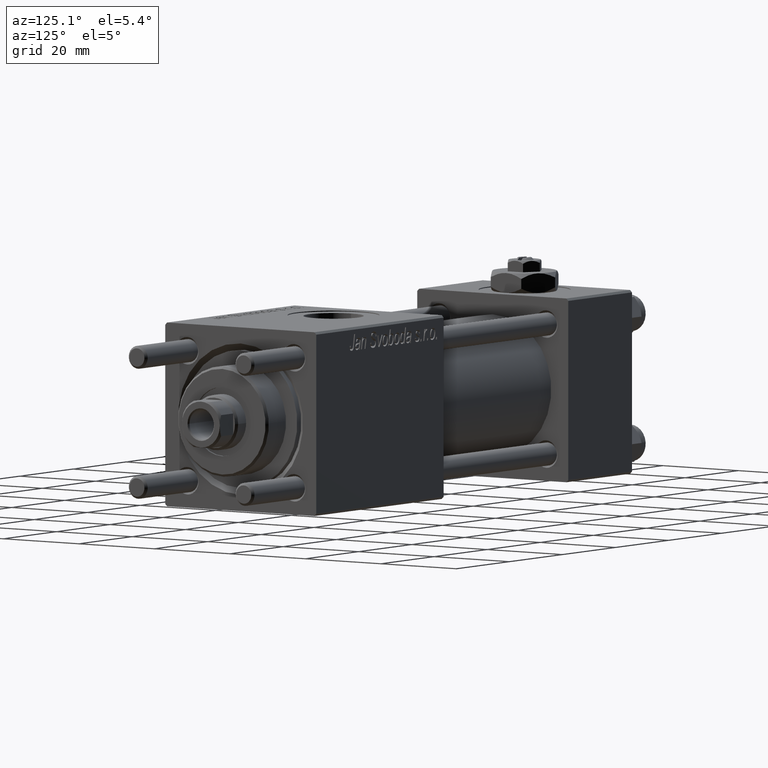
[diagram: clean part render]
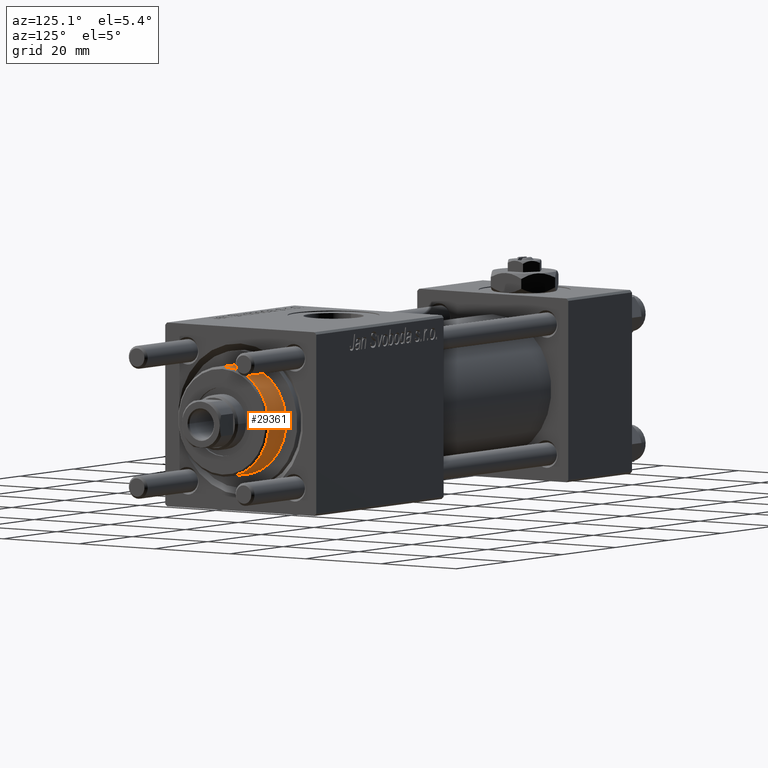
[diagram: same view with one face highlighted and labeled with its STEP entity id]
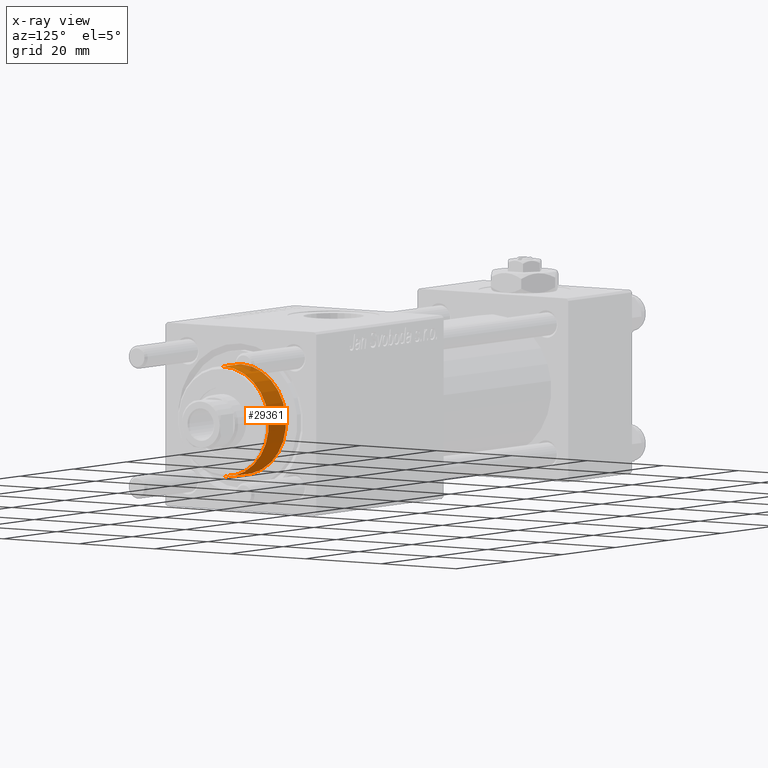
[diagram: x-ray of the same camera — body ghosted, the highlighted face saturated]
A machine part, auxiliary view. The second image highlights one B-rep face of the part: STEP entity #29361.
The next image is the same camera in x-ray: the body ghosted, the highlighted face saturated — about 4% of this face is hidden behind the body in this view.
In plain terms, the highlighted cylindrical surface (partial cylindrical patch) has radius 12 mm, axis along (-1, -0, 0).
Its self-contained STEP definition (entity closure, byte-faithful):
#186 = CARTESIAN_POINT ( 'NONE',  ( -12.00000000000000178, 0.000000000000000000, 35.70000000000000284 ) ) ;
#649 = AXIS2_PLACEMENT_3D ( 'NONE', #35007, #48288, #29972 ) ;
#1115 = AXIS2_PLACEMENT_3D ( 'NONE', #11661, #29681, #7503 ) ;
#2520 = VECTOR ( 'NONE', #42099, 1000.000000000000000 ) ;
#3050 = EDGE_CURVE ( 'NONE', #33622, #57617, #40954, .T. ) ;
#4201 = EDGE_CURVE ( 'NONE', #57617, #55994, #18612, .T. ) ;
#7251 = CARTESIAN_POINT ( 'NONE',  ( -12.00000000000000178, 0.000000000000000000, 28.69999999999999929 ) ) ;
#7503 = DIRECTION ( 'NONE',  ( 1.000000000000000000, 0.000000000000000000, 0.000000000000000000 ) ) ;
#11661 = CARTESIAN_POINT ( 'NONE',  ( 0.000000000000000000, 0.000000000000000000, 35.19999999999999574 ) ) ;
#12492 = CIRCLE ( 'NONE', #1115, 12.00000000000000178 ) ;
#13348 = CYLINDRICAL_SURFACE ( 'NONE', #57452, 12.00000000000000178 ) ;
#18612 = CIRCLE ( 'NONE', #649, 12.00000000000000178 ) ;
#19070 = CARTESIAN_POINT ( 'NONE',  ( 12.00000000000000178, 1.469576158976824144E-15, 35.70000000000000284 ) ) ;
#22963 = ORIENTED_EDGE ( 'NONE', *, *, #30290, .F. ) ;
#25221 = VERTEX_POINT ( 'NONE', #29364 ) ;
#25448 = DIRECTION ( 'NONE',  ( -0.000000000000000000, -0.000000000000000000, -1.000000000000000000 ) ) ;
#29361 = ADVANCED_FACE ( 'NONE', ( #34626 ), #13348, .T. ) ;
#29364 = CARTESIAN_POINT ( 'NONE',  ( -12.00000000000000178, 0.000000000000000000, 35.19999999999999574 ) ) ;
#29681 = DIRECTION ( 'NONE',  ( 0.000000000000000000, 0.000000000000000000, -1.000000000000000000 ) ) ;
#29972 = DIRECTION ( 'NONE',  ( 1.000000000000000000, 0.000000000000000000, 0.000000000000000000 ) ) ;
#30290 = EDGE_CURVE ( 'NONE', #25221, #55994, #30941, .T. ) ;
#30652 = CARTESIAN_POINT ( 'NONE',  ( 12.00000000000000178, 1.469576158976824144E-15, 35.19999999999999574 ) ) ;
#30941 = LINE ( 'NONE', #186, #31087 ) ;
#31087 = VECTOR ( 'NONE', #39828, 1000.000000000000000 ) ;
#33622 = VERTEX_POINT ( 'NONE', #30652 ) ;
#34626 = FACE_OUTER_BOUND ( 'NONE', #46272, .T. ) ;
#35007 = CARTESIAN_POINT ( 'NONE',  ( 0.000000000000000000, 0.000000000000000000, 28.69999999999999929 ) ) ;
#39343 = CARTESIAN_POINT ( 'NONE',  ( 0.000000000000000000, 0.000000000000000000, 35.70000000000000284 ) ) ;
#39828 = DIRECTION ( 'NONE',  ( -0.000000000000000000, -0.000000000000000000, -1.000000000000000000 ) ) ;
#40954 = LINE ( 'NONE', #19070, #2520 ) ;
#42099 = DIRECTION ( 'NONE',  ( -0.000000000000000000, -0.000000000000000000, -1.000000000000000000 ) ) ;
#42172 = EDGE_CURVE ( 'NONE', #25221, #33622, #12492, .T. ) ;
#42972 = CARTESIAN_POINT ( 'NONE',  ( 12.00000000000000178, 1.469576158976824144E-15, 28.69999999999999929 ) ) ;
#43484 = DIRECTION ( 'NONE',  ( -1.000000000000000000, 0.000000000000000000, 0.000000000000000000 ) ) ;
#46104 = ORIENTED_EDGE ( 'NONE', *, *, #4201, .T. ) ;
#46272 = EDGE_LOOP ( 'NONE', ( #57185, #52504, #46104, #22963 ) ) ;
#48288 = DIRECTION ( 'NONE',  ( 0.000000000000000000, 0.000000000000000000, 1.000000000000000000 ) ) ;
#52504 = ORIENTED_EDGE ( 'NONE', *, *, #3050, .T. ) ;
#55994 = VERTEX_POINT ( 'NONE', #7251 ) ;
#57185 = ORIENTED_EDGE ( 'NONE', *, *, #42172, .T. ) ;
#57452 = AXIS2_PLACEMENT_3D ( 'NONE', #39343, #25448, #43484 ) ;
#57617 = VERTEX_POINT ( 'NONE', #42972 ) ;